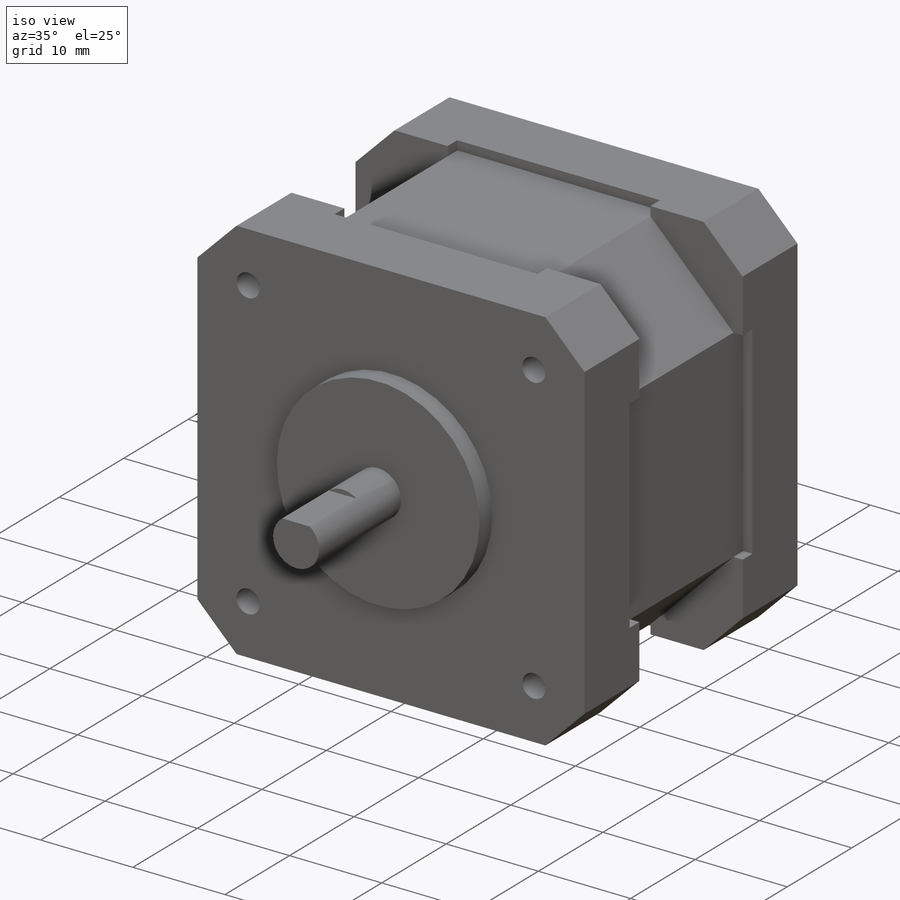
[diagram: iso view]
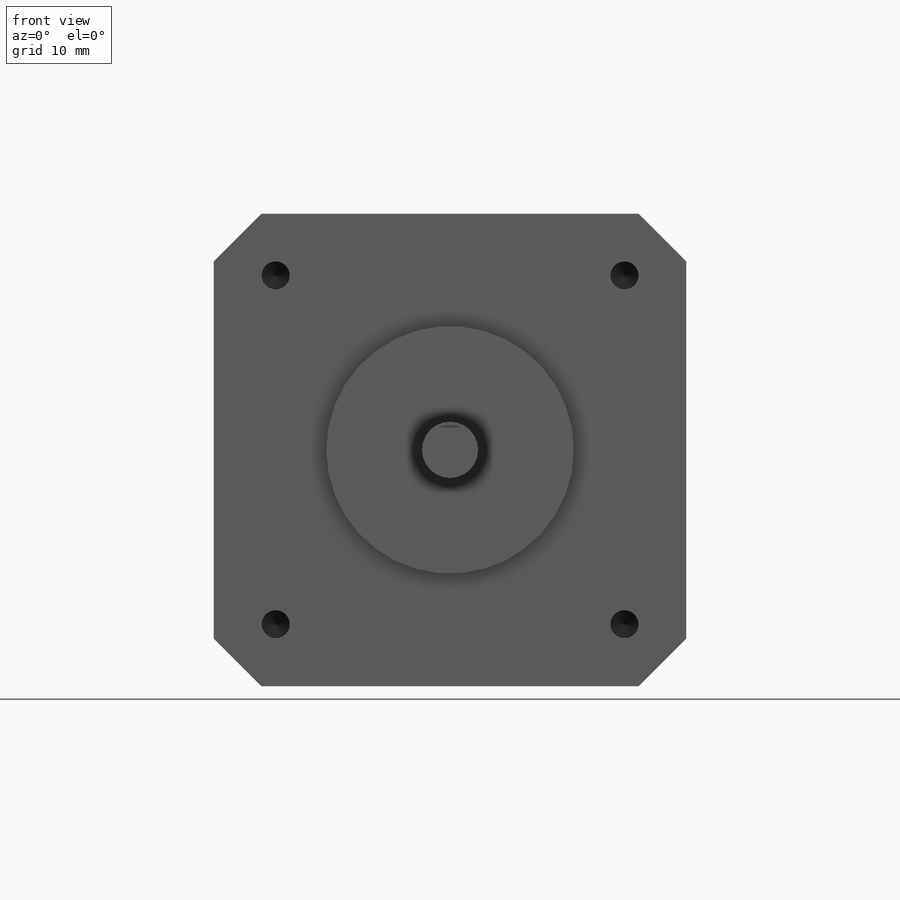
[diagram: front view]
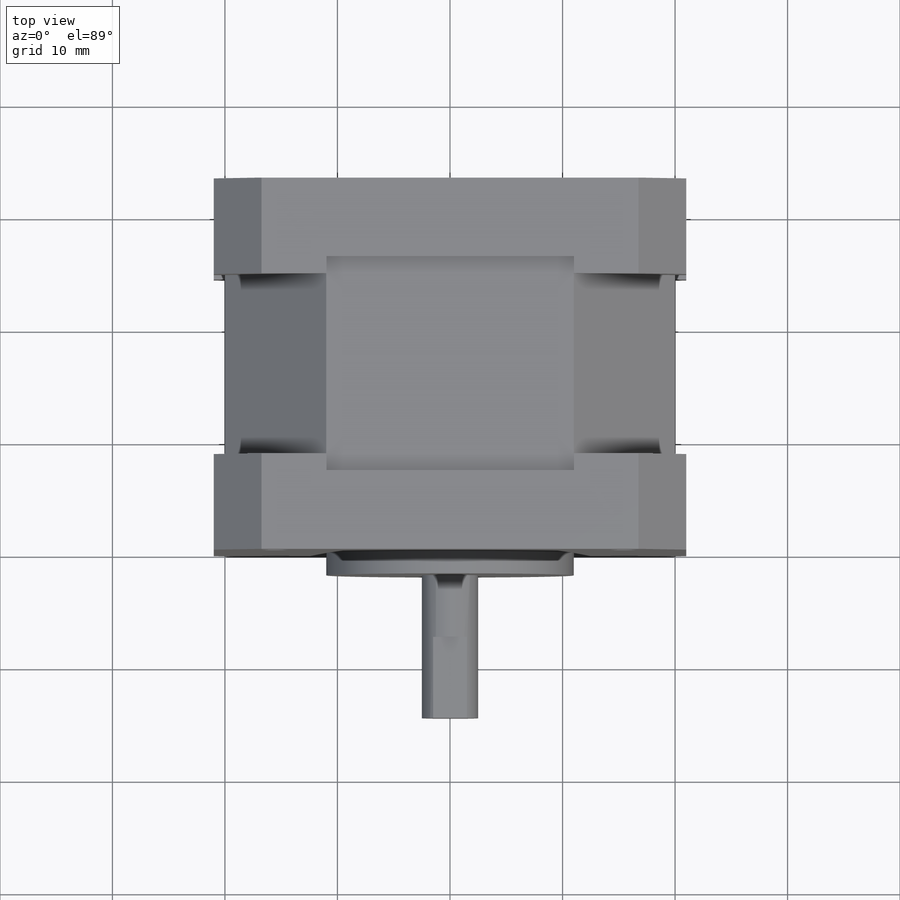
[diagram: top view]
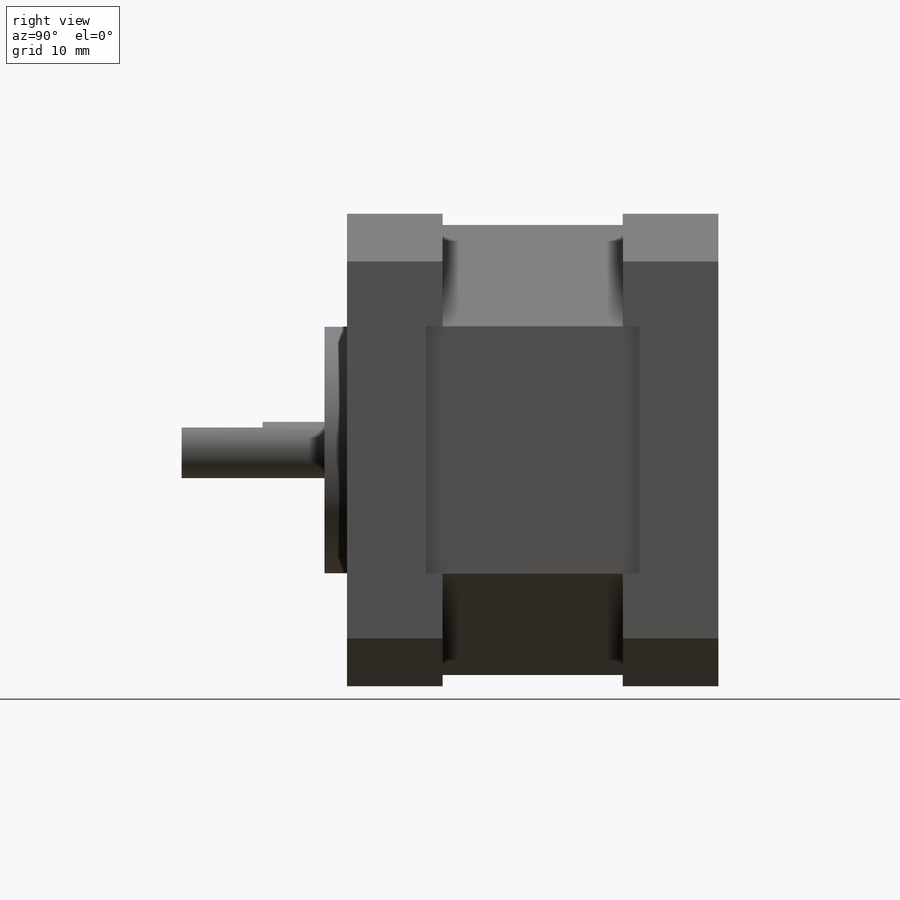
[diagram: right view]
SOLIDWORKS PART (.sldprt)
format: sldprt  version: not decoded by parser v0  size: 1,175,040 bytes
history: native  units: mm
features: sketch x8, extrude x3, cut_extrude x3, material x1, hole x1, plane x1, pattern_circular x1, mirror x1 (+13 scaffold rows collapsed)
feature tree (32):
  scaffold x13  (default folders/planes/origin — collapsed)
  material  "Material <not specified>"
  sketch  "Sketch1"  dims[Overall Width=42.0mm D1=3.0mm]
  extrude  "Boss-Extrude1"  Depth=33mm
  hole  "M3x0.5 Tapped Hole1"  Diameter=2.5mm Depth=7.5mm
  sketch  "Sketch3"  dims[Hole distance=31.0mm]
  sketch  "Sketch2"  dims[hole-wizard template sketch: 50 standard entries collapsed; hole parameters above]
  plane  "Plane1"
  sketch  "Sketch4"  dims[c1.D1=1.0mm c1.D2=1.0mm c2.D1=1.0mm c2.D2=1.0mm]
  cut_extrude  "Cut-Extrude1"  Depth=16mm
  sketch  "Sketch5"  dims[D1=1.5mm]
  cut_extrude  "Cut-Extrude2"  Depth=1mm
  pattern_circular  "CirPattern1"  Count=4 Angle=360deg
  sketch  "Sketch7"  dims[D1=22.0mm]
  extrude  "Boss-Extrude2"  Depth=2mm
  sketch  "Sketch8"  dims[D1=5.0mm]
  extrude  "Boss-Extrude3"  Depth=22.5mm
  sketch  "Sketch9"  dims[D shaft profile=4.5mm]
  cut_extrude  "Cut-Extrude3"  Depth=5.5mm
  mirror  "Mirror1"
decode coverage: 16 of 17 modeling features carry decoded parameters
note: ~ marks probable driven/reference dimensions
note: suppression state not decoded; provenance and decode notes live in map.json
